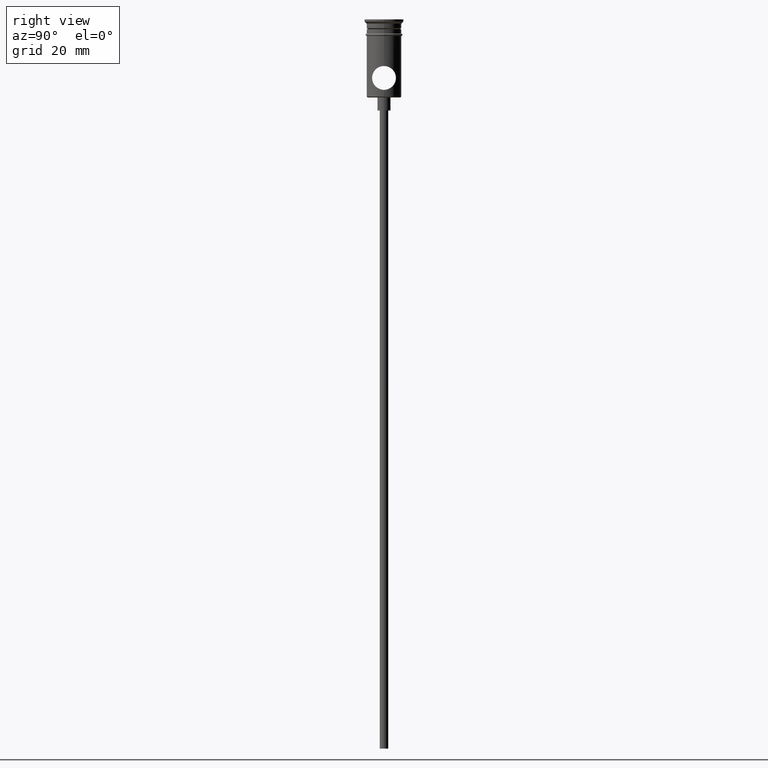
[diagram: clean part render]
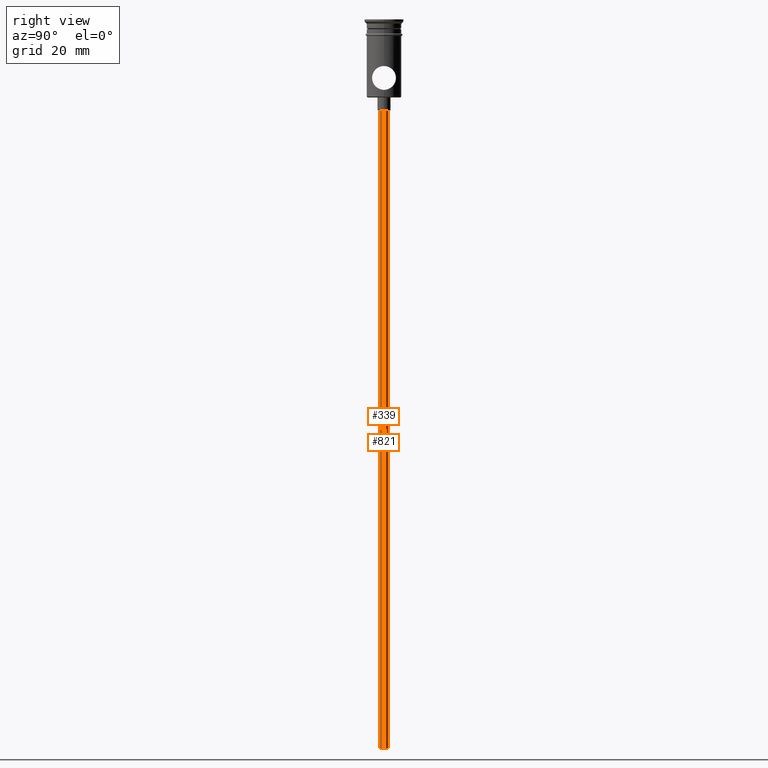
[diagram: same view with one multi-face feature highlighted, each face labeled with its STEP entity id]
A machine part, right view. The highlighted faces form ONE feature: a constant-radius fillet chain: 2 tangent blend faces with common blend radius 1 mm. The faces share edges in the B-rep.
Their STEP definitions:
[1] entity #339 (Cylinder):
#122 = DIRECTION ( 'NONE',  ( -0.000000000000000000, -0.000000000000000000, 1.000000000000000000 ) ) ;
#193 = AXIS2_PLACEMENT_3D ( 'NONE', #521, #963, #985 ) ;
#230 = DIRECTION ( 'NONE',  ( -1.000000000000000000, 0.000000000000000000, 0.000000000000000000 ) ) ;
#242 = DIRECTION ( 'NONE',  ( 1.000000000000000000, 0.000000000000000000, 0.000000000000000000 ) ) ;
#260 = ORIENTED_EDGE ( 'NONE', *, *, #1158, .T. ) ;
#261 = LINE ( 'NONE', #1226, #760 ) ;
#268 = CARTESIAN_POINT ( 'NONE',  ( 0.9999999999999997780, 0.000000000000000000, -20.99999999999999645 ) ) ;
#314 = ORIENTED_EDGE ( 'NONE', *, *, #783, .T. ) ;
#338 = FACE_OUTER_BOUND ( 'NONE', #729, .T. ) ;
#339 = ADVANCED_FACE ( 'NONE', ( #338 ), #1212, .T. ) ;
#349 = AXIS2_PLACEMENT_3D ( 'NONE', #1088, #122, #242 ) ;
#409 = VERTEX_POINT ( 'NONE', #268 ) ;
#507 = LINE ( 'NONE', #1267, #551 ) ;
#521 = CARTESIAN_POINT ( 'NONE',  ( 0.000000000000000000, 0.000000000000000000, -167.9999999999999716 ) ) ;
#551 = VECTOR ( 'NONE', #1368, 1000.000000000000000 ) ;
#558 = ORIENTED_EDGE ( 'NONE', *, *, #975, .F. ) ;
#682 = EDGE_CURVE ( 'NONE', #736, #1305, #1101, .T. ) ;
#729 = EDGE_LOOP ( 'NONE', ( #558, #751, #314, #260 ) ) ;
#736 = VERTEX_POINT ( 'NONE', #1079 ) ;
#743 = VERTEX_POINT ( 'NONE', #1297 ) ;
#751 = ORIENTED_EDGE ( 'NONE', *, *, #682, .F. ) ;
#760 = VECTOR ( 'NONE', #795, 1000.000000000000000 ) ;
#783 = EDGE_CURVE ( 'NONE', #736, #409, #261, .T. ) ;
#795 = DIRECTION ( 'NONE',  ( -0.000000000000000000, -0.000000000000000000, 1.000000000000000000 ) ) ;
#883 = AXIS2_PLACEMENT_3D ( 'NONE', #1209, #969, #230 ) ;
#963 = DIRECTION ( 'NONE',  ( 0.000000000000000000, 0.000000000000000000, -1.000000000000000000 ) ) ;
#969 = DIRECTION ( 'NONE',  ( 0.000000000000000000, 0.000000000000000000, -1.000000000000000000 ) ) ;
#975 = EDGE_CURVE ( 'NONE', #1305, #743, #507, .T. ) ;
#985 = DIRECTION ( 'NONE',  ( -1.000000000000000000, 0.000000000000000000, 0.000000000000000000 ) ) ;
#1079 = CARTESIAN_POINT ( 'NONE',  ( 0.9999999999999997780, 0.000000000000000000, -167.9999999999999716 ) ) ;
#1088 = CARTESIAN_POINT ( 'NONE',  ( 0.000000000000000000, 0.000000000000000000, -167.9999999999999716 ) ) ;
#1101 = CIRCLE ( 'NONE', #193, 0.9999999999999997780 ) ;
#1146 = CIRCLE ( 'NONE', #883, 0.9999999999999997780 ) ;
#1158 = EDGE_CURVE ( 'NONE', #409, #743, #1146, .T. ) ;
#1209 = CARTESIAN_POINT ( 'NONE',  ( 0.000000000000000000, 0.000000000000000000, -20.99999999999999645 ) ) ;
#1212 = CYLINDRICAL_SURFACE ( 'NONE', #349, 0.9999999999999997780 ) ;
#1226 = CARTESIAN_POINT ( 'NONE',  ( 0.9999999999999997780, 0.000000000000000000, -167.9999999999999716 ) ) ;
#1246 = CARTESIAN_POINT ( 'NONE',  ( -0.9999999999999997780, 1.224646799147352961E-16, -167.9999999999999716 ) ) ;
#1267 = CARTESIAN_POINT ( 'NONE',  ( -0.9999999999999997780, 1.224646799147352961E-16, -167.9999999999999716 ) ) ;
#1297 = CARTESIAN_POINT ( 'NONE',  ( -0.9999999999999997780, 1.224646799147352961E-16, -20.99999999999999645 ) ) ;
#1305 = VERTEX_POINT ( 'NONE', #1246 ) ;
#1368 = DIRECTION ( 'NONE',  ( -0.000000000000000000, -0.000000000000000000, 1.000000000000000000 ) ) ;
[2] entity #821 (Cylinder):
#65 = EDGE_CURVE ( 'NONE', #1305, #736, #689, .T. ) ;
#92 = DIRECTION ( 'NONE',  ( -1.000000000000000000, 0.000000000000000000, 0.000000000000000000 ) ) ;
#125 = CIRCLE ( 'NONE', #940, 0.9999999999999997780 ) ;
#261 = LINE ( 'NONE', #1226, #760 ) ;
#268 = CARTESIAN_POINT ( 'NONE',  ( 0.9999999999999997780, 0.000000000000000000, -20.99999999999999645 ) ) ;
#409 = VERTEX_POINT ( 'NONE', #268 ) ;
#419 = ORIENTED_EDGE ( 'NONE', *, *, #783, .F. ) ;
#467 = ORIENTED_EDGE ( 'NONE', *, *, #632, .T. ) ;
#507 = LINE ( 'NONE', #1267, #551 ) ;
#551 = VECTOR ( 'NONE', #1368, 1000.000000000000000 ) ;
#588 = ORIENTED_EDGE ( 'NONE', *, *, #65, .F. ) ;
#628 = ORIENTED_EDGE ( 'NONE', *, *, #975, .T. ) ;
#632 = EDGE_CURVE ( 'NONE', #743, #409, #125, .T. ) ;
#689 = CIRCLE ( 'NONE', #713, 0.9999999999999997780 ) ;
#713 = AXIS2_PLACEMENT_3D ( 'NONE', #968, #977, #92 ) ;
#728 = CARTESIAN_POINT ( 'NONE',  ( 0.000000000000000000, 0.000000000000000000, -20.99999999999999645 ) ) ;
#736 = VERTEX_POINT ( 'NONE', #1079 ) ;
#743 = VERTEX_POINT ( 'NONE', #1297 ) ;
#760 = VECTOR ( 'NONE', #795, 1000.000000000000000 ) ;
#783 = EDGE_CURVE ( 'NONE', #736, #409, #261, .T. ) ;
#795 = DIRECTION ( 'NONE',  ( -0.000000000000000000, -0.000000000000000000, 1.000000000000000000 ) ) ;
#801 = CYLINDRICAL_SURFACE ( 'NONE', #1198, 0.9999999999999997780 ) ;
#818 = FACE_OUTER_BOUND ( 'NONE', #918, .T. ) ;
#821 = ADVANCED_FACE ( 'NONE', ( #818 ), #801, .T. ) ;
#909 = DIRECTION ( 'NONE',  ( 1.000000000000000000, 0.000000000000000000, 0.000000000000000000 ) ) ;
#918 = EDGE_LOOP ( 'NONE', ( #588, #628, #467, #419 ) ) ;
#940 = AXIS2_PLACEMENT_3D ( 'NONE', #728, #1171, #1281 ) ;
#968 = CARTESIAN_POINT ( 'NONE',  ( 0.000000000000000000, 0.000000000000000000, -167.9999999999999716 ) ) ;
#975 = EDGE_CURVE ( 'NONE', #1305, #743, #507, .T. ) ;
#977 = DIRECTION ( 'NONE',  ( 0.000000000000000000, 0.000000000000000000, -1.000000000000000000 ) ) ;
#1079 = CARTESIAN_POINT ( 'NONE',  ( 0.9999999999999997780, 0.000000000000000000, -167.9999999999999716 ) ) ;
#1171 = DIRECTION ( 'NONE',  ( 0.000000000000000000, 0.000000000000000000, -1.000000000000000000 ) ) ;
#1198 = AXIS2_PLACEMENT_3D ( 'NONE', #1238, #1338, #909 ) ;
#1226 = CARTESIAN_POINT ( 'NONE',  ( 0.9999999999999997780, 0.000000000000000000, -167.9999999999999716 ) ) ;
#1238 = CARTESIAN_POINT ( 'NONE',  ( 0.000000000000000000, 0.000000000000000000, -167.9999999999999716 ) ) ;
#1246 = CARTESIAN_POINT ( 'NONE',  ( -0.9999999999999997780, 1.224646799147352961E-16, -167.9999999999999716 ) ) ;
#1267 = CARTESIAN_POINT ( 'NONE',  ( -0.9999999999999997780, 1.224646799147352961E-16, -167.9999999999999716 ) ) ;
#1281 = DIRECTION ( 'NONE',  ( -1.000000000000000000, 0.000000000000000000, 0.000000000000000000 ) ) ;
#1297 = CARTESIAN_POINT ( 'NONE',  ( -0.9999999999999997780, 1.224646799147352961E-16, -20.99999999999999645 ) ) ;
#1305 = VERTEX_POINT ( 'NONE', #1246 ) ;
#1338 = DIRECTION ( 'NONE',  ( -0.000000000000000000, -0.000000000000000000, 1.000000000000000000 ) ) ;
#1368 = DIRECTION ( 'NONE',  ( -0.000000000000000000, -0.000000000000000000, 1.000000000000000000 ) ) ;